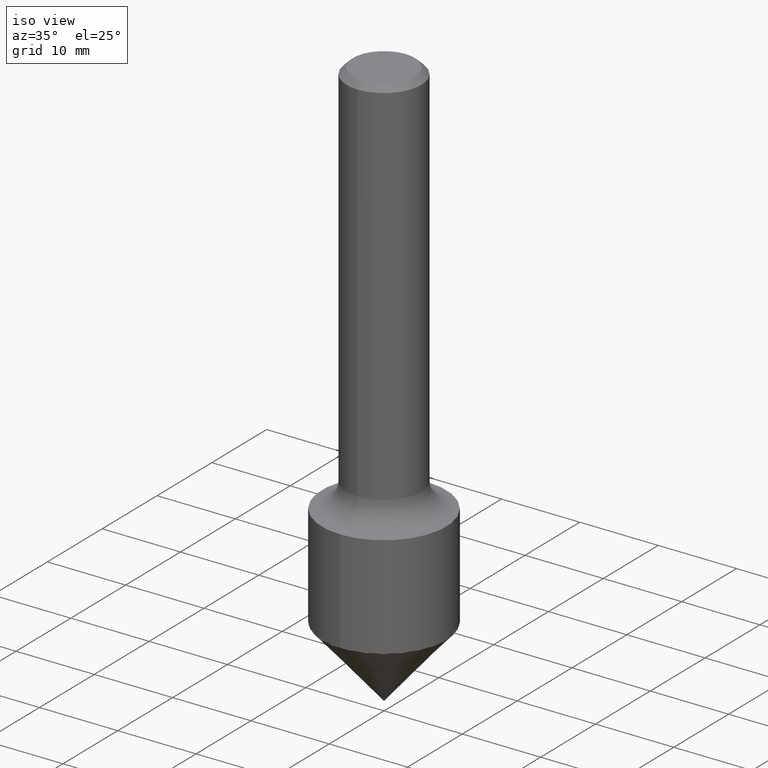
[diagram: clean part render]
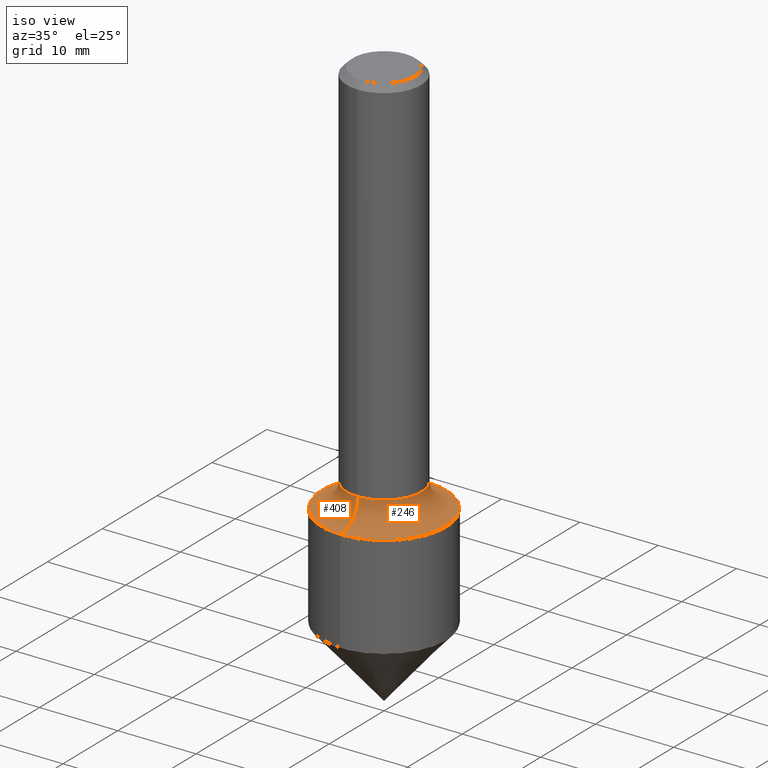
[diagram: same view with one multi-face feature highlighted, each face labeled with its STEP entity id]
A machine part, iso view. The highlighted faces form ONE feature: a constant-radius fillet chain: 2 tangent blend faces with common blend radius 3.175 mm. The faces share edges in the B-rep.
Their STEP definitions:
[1] entity #408 (Torus):
#4 = ORIENTED_EDGE ( 'NONE', *, *, #23, .F. ) ;
#9 = ORIENTED_EDGE ( 'NONE', *, *, #170, .F. ) ;
#15 = EDGE_CURVE ( 'NONE', #143, #162, #235, .T. ) ;
#18 = CIRCLE ( 'NONE', #358, 0.1875000000000003331 ) ;
#23 = EDGE_CURVE ( 'NONE', #183, #185, #439, .T. ) ;
#26 = AXIS2_PLACEMENT_3D ( 'NONE', #97, #248, #62 ) ;
#51 = DIRECTION ( 'NONE',  ( -6.982962677686265133E-15, -1.000000000000000000, 0.000000000000000000 ) ) ;
#54 = CARTESIAN_POINT ( 'NONE',  ( 1.776356839400297402E-15, 0.1874999999999936995, -1.880000000000001004 ) ) ;
#60 = DIRECTION ( 'NONE',  ( -1.000000000000000000, 6.982962677686265922E-15, -4.883557194083112340E-29 ) ) ;
#62 = DIRECTION ( 'NONE',  ( 7.105427357601001859E-15, 1.000000000000000000, 0.000000000000000000 ) ) ;
#75 = EDGE_LOOP ( 'NONE', ( #9, #484, #455, #4 ) ) ;
#89 = AXIS2_PLACEMENT_3D ( 'NONE', #105, #190, #339 ) ;
#97 = CARTESIAN_POINT ( 'NONE',  ( 2.220446049250357651E-15, 0.3124999999999933387, -1.880000000000001448 ) ) ;
#105 = CARTESIAN_POINT ( 'NONE',  ( 4.549790374175883781E-29, -6.632281116866721359E-15, -1.880000000000000338 ) ) ;
#126 = DIRECTION ( 'NONE',  ( -2.425980914324989080E-29, 3.519389109168798508E-15, 1.000000000000000000 ) ) ;
#129 = CIRCLE ( 'NONE', #481, 0.3124999999999998335 ) ;
#140 = CARTESIAN_POINT ( 'NONE',  ( -1.309305502066131621E-15, -0.1875000000000069389, -1.879999999999999893 ) ) ;
#143 = VERTEX_POINT ( 'NONE', #54 ) ;
#162 = VERTEX_POINT ( 'NONE', #443 ) ;
#170 = EDGE_CURVE ( 'NONE', #143, #183, #18, .T. ) ;
#171 = CARTESIAN_POINT ( 'NONE',  ( 4.864091733221603121E-29, -7.056375163883441320E-15, -2.004999999999999893 ) ) ;
#179 = CARTESIAN_POINT ( 'NONE',  ( -2.182175836776908649E-15, -0.3125000000000069389, -2.004999999999999005 ) ) ;
#183 = VERTEX_POINT ( 'NONE', #140 ) ;
#185 = VERTEX_POINT ( 'NONE', #179 ) ;
#190 = DIRECTION ( 'NONE',  ( -2.425980914324989080E-29, 3.519389109168798508E-15, 1.000000000000000000 ) ) ;
#225 = FACE_OUTER_BOUND ( 'NONE', #75, .T. ) ;
#235 = CIRCLE ( 'NONE', #26, 0.1249999999999996253 ) ;
#248 = DIRECTION ( 'NONE',  ( 1.000000000000000000, -7.105427357601001070E-15, 4.926657280158088784E-29 ) ) ;
#275 = EDGE_CURVE ( 'NONE', #162, #185, #129, .T. ) ;
#279 = DIRECTION ( 'NONE',  ( -6.982962677686265922E-15, -1.000000000000000000, 2.913971193241875639E-15 ) ) ;
#301 = TOROIDAL_SURFACE ( 'NONE', #89, 0.3124999999999999445, 0.1249999999999996253 ) ;
#322 = DIRECTION ( 'NONE',  ( -6.982962677686265133E-15, -1.000000000000000000, 3.496765431890258892E-15 ) ) ;
#339 = DIRECTION ( 'NONE',  ( -6.982962677686265133E-15, -1.000000000000000000, 3.519389109168798508E-15 ) ) ;
#358 = AXIS2_PLACEMENT_3D ( 'NONE', #471, #126, #279 ) ;
#367 = AXIS2_PLACEMENT_3D ( 'NONE', #397, #60, #51 ) ;
#396 = DIRECTION ( 'NONE',  ( -2.425980914324989080E-29, 3.519389109168798508E-15, 1.000000000000000000 ) ) ;
#397 = CARTESIAN_POINT ( 'NONE',  ( -2.182175836776912199E-15, -0.3125000000000065503, -1.879999999999999449 ) ) ;
#408 = ADVANCED_FACE ( 'NONE', ( #225 ), #301, .F. ) ;
#439 = CIRCLE ( 'NONE', #367, 0.1249999999999996253 ) ;
#443 = CARTESIAN_POINT ( 'NONE',  ( 2.220446049250360807E-15, 0.3124999999999928391, -2.005000000000001226 ) ) ;
#455 = ORIENTED_EDGE ( 'NONE', *, *, #275, .T. ) ;
#471 = CARTESIAN_POINT ( 'NONE',  ( 4.560844118930980782E-29, -6.616451525237342394E-15, -1.880000000000000338 ) ) ;
#481 = AXIS2_PLACEMENT_3D ( 'NONE', #171, #396, #322 ) ;
#484 = ORIENTED_EDGE ( 'NONE', *, *, #15, .T. ) ;
[2] entity #246 (Torus):
#15 = EDGE_CURVE ( 'NONE', #143, #162, #235, .T. ) ;
#21 = FACE_OUTER_BOUND ( 'NONE', #463, .T. ) ;
#23 = EDGE_CURVE ( 'NONE', #183, #185, #439, .T. ) ;
#26 = AXIS2_PLACEMENT_3D ( 'NONE', #97, #248, #62 ) ;
#48 = ORIENTED_EDGE ( 'NONE', *, *, #58, .T. ) ;
#51 = DIRECTION ( 'NONE',  ( -6.982962677686265133E-15, -1.000000000000000000, 0.000000000000000000 ) ) ;
#54 = CARTESIAN_POINT ( 'NONE',  ( 1.776356839400297402E-15, 0.1874999999999936995, -1.880000000000001004 ) ) ;
#58 = EDGE_CURVE ( 'NONE', #185, #162, #335, .T. ) ;
#60 = DIRECTION ( 'NONE',  ( -1.000000000000000000, 6.982962677686265922E-15, -4.883557194083112340E-29 ) ) ;
#62 = DIRECTION ( 'NONE',  ( 7.105427357601001859E-15, 1.000000000000000000, 0.000000000000000000 ) ) ;
#66 = CIRCLE ( 'NONE', #224, 0.1875000000000003331 ) ;
#70 = DIRECTION ( 'NONE',  ( -2.425980914324989080E-29, 3.519389109168798508E-15, 1.000000000000000000 ) ) ;
#92 = DIRECTION ( 'NONE',  ( -2.425980914324989080E-29, 3.519389109168798508E-15, 1.000000000000000000 ) ) ;
#97 = CARTESIAN_POINT ( 'NONE',  ( 2.220446049250357651E-15, 0.3124999999999933387, -1.880000000000001448 ) ) ;
#110 = AXIS2_PLACEMENT_3D ( 'NONE', #361, #92, #243 ) ;
#140 = CARTESIAN_POINT ( 'NONE',  ( -1.309305502066131621E-15, -0.1875000000000069389, -1.879999999999999893 ) ) ;
#143 = VERTEX_POINT ( 'NONE', #54 ) ;
#151 = DIRECTION ( 'NONE',  ( -6.982962677686265922E-15, -1.000000000000000000, 2.913971193241875639E-15 ) ) ;
#158 = ORIENTED_EDGE ( 'NONE', *, *, #15, .F. ) ;
#160 = ORIENTED_EDGE ( 'NONE', *, *, #23, .T. ) ;
#162 = VERTEX_POINT ( 'NONE', #443 ) ;
#172 = CARTESIAN_POINT ( 'NONE',  ( 4.864091733221603121E-29, -7.056375163883441320E-15, -2.004999999999999893 ) ) ;
#179 = CARTESIAN_POINT ( 'NONE',  ( -2.182175836776908649E-15, -0.3125000000000069389, -2.004999999999999005 ) ) ;
#183 = VERTEX_POINT ( 'NONE', #140 ) ;
#185 = VERTEX_POINT ( 'NONE', #179 ) ;
#223 = AXIS2_PLACEMENT_3D ( 'NONE', #172, #362, #315 ) ;
#224 = AXIS2_PLACEMENT_3D ( 'NONE', #409, #70, #151 ) ;
#235 = CIRCLE ( 'NONE', #26, 0.1249999999999996253 ) ;
#236 = TOROIDAL_SURFACE ( 'NONE', #110, 0.3124999999999999445, 0.1249999999999996253 ) ;
#243 = DIRECTION ( 'NONE',  ( -6.982962677686265133E-15, -1.000000000000000000, 3.519389109168798508E-15 ) ) ;
#246 = ADVANCED_FACE ( 'NONE', ( #21 ), #236, .F. ) ;
#248 = DIRECTION ( 'NONE',  ( 1.000000000000000000, -7.105427357601001070E-15, 4.926657280158088784E-29 ) ) ;
#315 = DIRECTION ( 'NONE',  ( -6.982962677686265133E-15, -1.000000000000000000, 3.496765431890258892E-15 ) ) ;
#335 = CIRCLE ( 'NONE', #223, 0.3124999999999998335 ) ;
#337 = ORIENTED_EDGE ( 'NONE', *, *, #466, .F. ) ;
#361 = CARTESIAN_POINT ( 'NONE',  ( 4.549790374175883781E-29, -6.632281116866721359E-15, -1.880000000000000338 ) ) ;
#362 = DIRECTION ( 'NONE',  ( -2.425980914324989080E-29, 3.519389109168798508E-15, 1.000000000000000000 ) ) ;
#367 = AXIS2_PLACEMENT_3D ( 'NONE', #397, #60, #51 ) ;
#397 = CARTESIAN_POINT ( 'NONE',  ( -2.182175836776912199E-15, -0.3125000000000065503, -1.879999999999999449 ) ) ;
#409 = CARTESIAN_POINT ( 'NONE',  ( 4.560844118930980782E-29, -6.616451525237342394E-15, -1.880000000000000338 ) ) ;
#439 = CIRCLE ( 'NONE', #367, 0.1249999999999996253 ) ;
#443 = CARTESIAN_POINT ( 'NONE',  ( 2.220446049250360807E-15, 0.3124999999999928391, -2.005000000000001226 ) ) ;
#463 = EDGE_LOOP ( 'NONE', ( #158, #337, #160, #48 ) ) ;
#466 = EDGE_CURVE ( 'NONE', #183, #143, #66, .T. ) ;